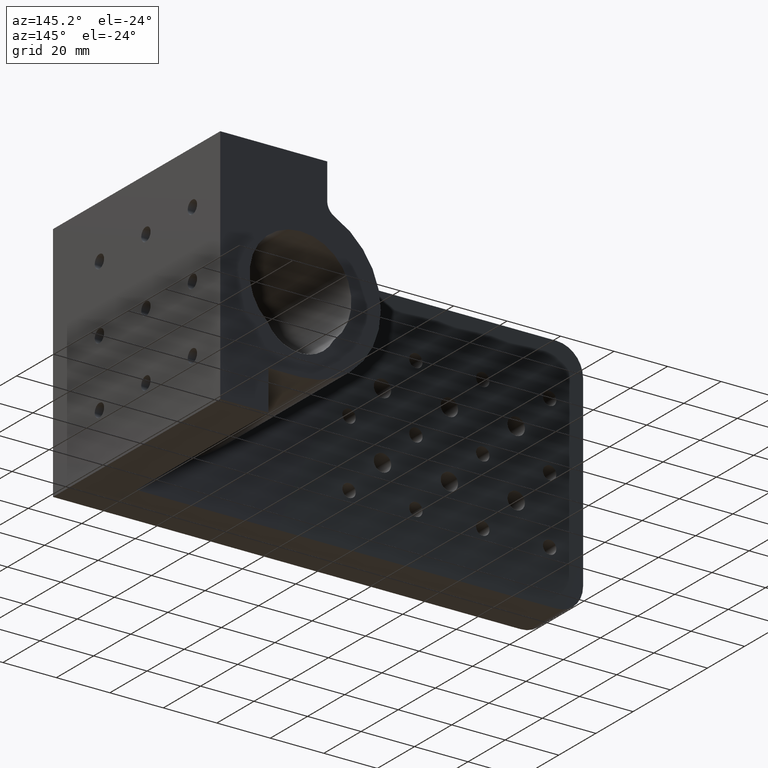
[diagram: clean part render]
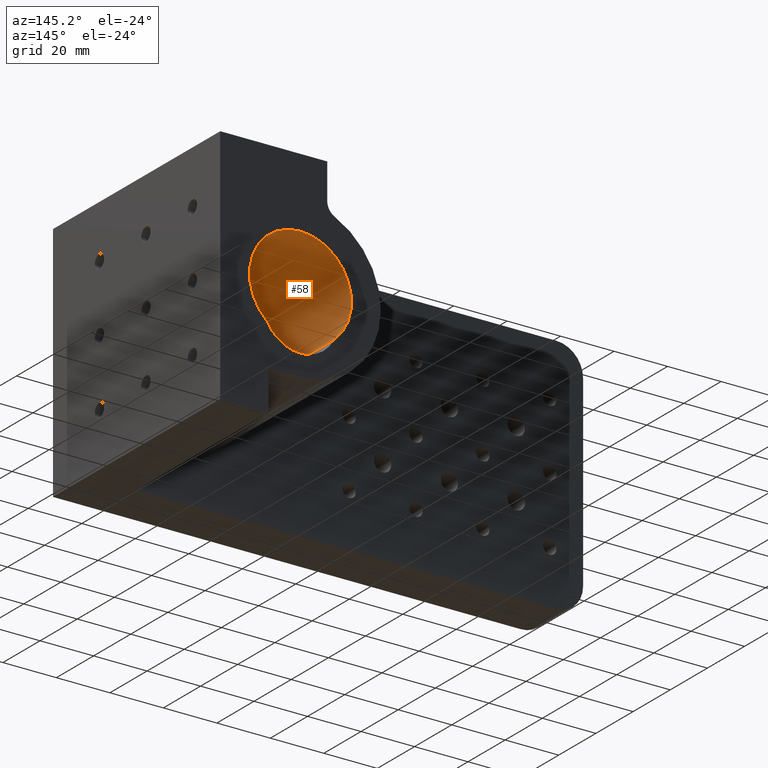
[diagram: same view with one face highlighted and labeled with its STEP entity id]
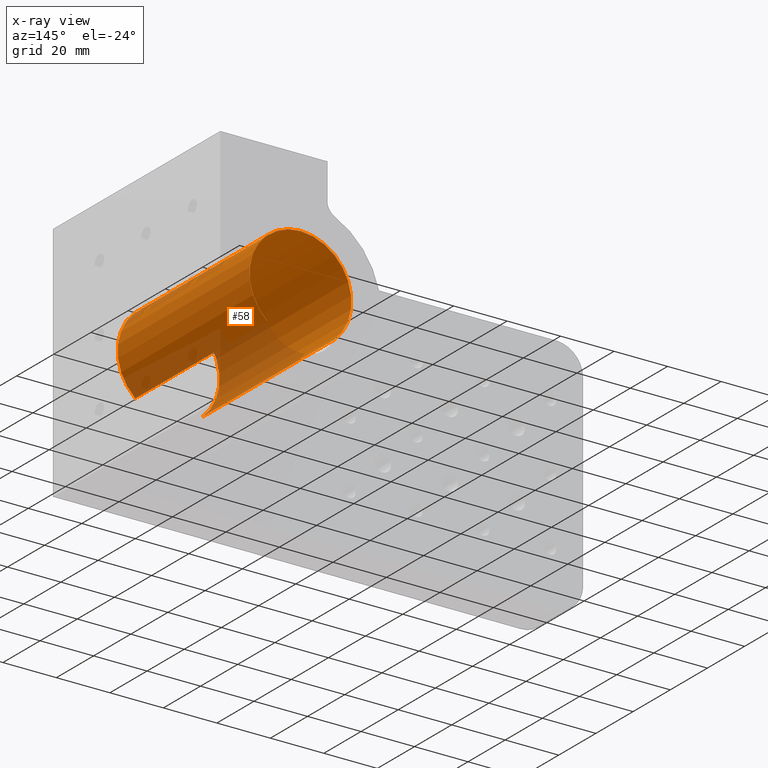
[diagram: x-ray of the same camera — body ghosted, the highlighted face saturated]
A machine part, auxiliary view. The second image highlights one B-rep face of the part: STEP entity #58.
The next image is the same camera in x-ray: the body ghosted, the highlighted face saturated — about 27% of this face is hidden behind the body in this view.
In plain terms, the highlighted cylindrical surface (partial cylindrical patch) has radius 19.05 mm, axis along (-0, -1, -0).
Its self-contained STEP definition (entity closure, byte-faithful):
#58 = ADVANCED_FACE ( 'NONE', ( #131, #5009 ), #5196, .F. ) ;
#65 = CARTESIAN_POINT ( 'NONE',  ( 156.8322518949002000, 104.2146020396520600, 129.3844876752718600 ) ) ;
#131 = FACE_BOUND ( 'NONE', #2274, .T. ) ;
#173 = ORIENTED_EDGE ( 'NONE', *, *, #1598, .T. ) ;
#221 = EDGE_CURVE ( 'NONE', #2389, #1875, #5304, .T. ) ;
#306 = CARTESIAN_POINT ( 'NONE',  ( 144.3969387244481500, 175.2146020396520500, 143.8158939252802800 ) ) ;
#332 = CARTESIAN_POINT ( 'NONE',  ( 144.3969387244481500, 175.2146020396520500, 143.8158939252802800 ) ) ;
#345 = CARTESIAN_POINT ( 'NONE',  ( 140.5534940069089200, 131.8457320932120900, 162.4756939529519900 ) ) ;
#360 = CARTESIAN_POINT ( 'NONE',  ( 144.7320745296052800, 140.3146764051232900, 162.8659138341461100 ) ) ;
#378 = CARTESIAN_POINT ( 'NONE',  ( 139.2969387244481800, 135.5482889441150600, 162.1705254933614000 ) ) ;
#391 = CARTESIAN_POINT ( 'NONE',  ( 148.2356930480436600, 138.5885285605427000, 162.4766348265846700 ) ) ;
#394 = CARTESIAN_POINT ( 'NONE',  ( 147.5124767684190500, 131.1629616537636300, 162.6115125459931200 ) ) ;
#504 = CARTESIAN_POINT ( 'NONE',  ( 156.8322518949002000, 175.2146020396520500, 129.3844876752718600 ) ) ;
#517 = CARTESIAN_POINT ( 'NONE',  ( 131.9616255539765500, 104.2146020396520600, 129.3844876752886800 ) ) ;
#678 = EDGE_CURVE ( 'NONE', #2223, #2565, #953, .T. ) ;
#742 = CARTESIAN_POINT ( 'NONE',  ( 149.4969387244482000, 134.8759589777436400, 162.1705254933614200 ) ) ;
#764 = CARTESIAN_POINT ( 'NONE',  ( 143.7249337885868100, 130.1480363029228900, 162.8568653750938300 ) ) ;
#777 = CARTESIAN_POINT ( 'NONE',  ( 147.5098175212722300, 139.2682501928640000, 162.6119492285722300 ) ) ;
#782 = CARTESIAN_POINT ( 'NONE',  ( 144.7334623074209800, 130.1147421188570400, 162.8658564237639400 ) ) ;
#820 = CARTESIAN_POINT ( 'NONE',  ( 142.7507941735931600, 130.3759341129924100, 162.7971921713010500 ) ) ;
#829 = CARTESIAN_POINT ( 'NONE',  ( 139.8142782350315400, 137.4773074850221500, 162.3069470261760600 ) ) ;
#906 = DIRECTION ( 'NONE',  ( 0.0000000000000000000, 1.000000000000000000, 0.0000000000000000000 ) ) ;
#945 = CARTESIAN_POINT ( 'NONE',  ( 144.3969387244481500, 104.2146020396520600, 143.8158939252802800 ) ) ;
#953 = LINE ( 'NONE', #4755, #5233 ) ;
#1163 = CARTESIAN_POINT ( 'NONE',  ( 146.0444371625371800, 130.3851348704734800, 162.7951991871729300 ) ) ;
#1174 = ORIENTED_EDGE ( 'NONE', *, *, #2784, .T. ) ;
#1178 = CARTESIAN_POINT ( 'NONE',  ( 146.6609617867881600, 130.6326331705610100, 162.7333911817502200 ) ) ;
#1190 = CARTESIAN_POINT ( 'NONE',  ( 139.2969387244481500, 135.2146020396520800, 162.1705254933614000 ) ) ;
#1228 = CARTESIAN_POINT ( 'NONE',  ( 145.0641024167868800, 140.2818153931530700, 162.8570386131046100 ) ) ;
#1336 = ORIENTED_EDGE ( 'NONE', *, *, #2569, .F. ) ;
#1512 = CIRCLE ( 'NONE', #3780, 19.05000000000001100 ) ;
#1556 = DIRECTION ( 'NONE',  ( 0.0000000000000000000, 0.0000000000000000000, 1.000000000000000000 ) ) ;
#1579 = CARTESIAN_POINT ( 'NONE',  ( 145.0654611669130500, 130.1474505689380100, 162.8570203914796700 ) ) ;
#1582 = VERTEX_POINT ( 'NONE', #65 ) ;
#1596 = CARTESIAN_POINT ( 'NONE',  ( 139.3294715469843400, 135.8815957690566200, 162.1796618298240300 ) ) ;
#1598 = EDGE_CURVE ( 'NONE', #2642, #1582, #2453, .T. ) ;
#1602 = CARTESIAN_POINT ( 'NONE',  ( 139.9745827405436700, 132.6528109795745800, 162.3464387125089800 ) ) ;
#1619 = CARTESIAN_POINT ( 'NONE',  ( 149.3330198447654000, 133.8893576014448600, 162.2154096213646700 ) ) ;
#1631 = CARTESIAN_POINT ( 'NONE',  ( 141.8351782834190000, 139.6369392454651000, 162.6949125559027900 ) ) ;
#1633 = CARTESIAN_POINT ( 'NONE',  ( 139.8144160578500000, 132.9515437315565700, 162.3069825420576800 ) ) ;
#1644 = CARTESIAN_POINT ( 'NONE',  ( 140.3441544502366000, 138.3283713162923300, 162.4307659959254100 ) ) ;
#1667 = CARTESIAN_POINT ( 'NONE',  ( 146.0453924596806700, 140.0523107751770300, 162.7969537645085200 ) ) ;
#1675 = AXIS2_PLACEMENT_3D ( 'NONE', #306, #4431, #1556 ) ;
#1875 = VERTEX_POINT ( 'NONE', #5200 ) ;
#1938 = EDGE_CURVE ( 'NONE', #1875, #2389, #4096, .T. ) ;
#1982 = CARTESIAN_POINT ( 'NONE',  ( 141.8352386204892400, 130.7922128592349200, 162.6949234834818600 ) ) ;
#2004 = CARTESIAN_POINT ( 'NONE',  ( 143.0695321403437700, 130.2790503218704700, 162.8224237544446000 ) ) ;
#2022 = CARTESIAN_POINT ( 'NONE',  ( 139.3051100645902200, 134.8805923814755700, 162.1728020282841400 ) ) ;
#2067 = CARTESIAN_POINT ( 'NONE',  ( 149.3321772510421400, 136.5433505991102500, 162.2156372679507400 ) ) ;
#2223 = VERTEX_POINT ( 'NONE', #4700 ) ;
#2274 = EDGE_LOOP ( 'NONE', ( #2813, #4960 ) ) ;
#2389 = VERTEX_POINT ( 'NONE', #3686 ) ;
#2397 = CARTESIAN_POINT ( 'NONE',  ( 139.9740738621586000, 137.7756342322200300, 162.3463226572256100 ) ) ;
#2404 = CARTESIAN_POINT ( 'NONE',  ( 148.9776559678246900, 132.9477520386494700, 162.3074339855491200 ) ) ;
#2416 = CARTESIAN_POINT ( 'NONE',  ( 139.4617080185513500, 136.5441140212872100, 162.2156410193627500 ) ) ;
#2441 = CARTESIAN_POINT ( 'NONE',  ( 148.4490260531241300, 138.3294035973164600, 162.4309245915997100 ) ) ;
#2444 = CARTESIAN_POINT ( 'NONE',  ( 146.9553531879317900, 130.7900249352239300, 162.6954164847030600 ) ) ;
#2453 = LINE ( 'NONE', #504, #4986 ) ;
#2456 = CARTESIAN_POINT ( 'NONE',  ( 144.0578928810630300, 140.3060865160075800, 162.8636091834151800 ) ) ;
#2461 = CARTESIAN_POINT ( 'NONE',  ( 146.2010709016348100, 130.4414828421804800, 162.7808974266266100 ) ) ;
#2565 = VERTEX_POINT ( 'NONE', #517 ) ;
#2569 = EDGE_CURVE ( 'NONE', #2565, #1582, #1512, .T. ) ;
#2591 = CIRCLE ( 'NONE', #1675, 19.05000000000001100 ) ;
#2642 = VERTEX_POINT ( 'NONE', #3550 ) ;
#2784 = EDGE_CURVE ( 'NONE', #2223, #2642, #2591, .T. ) ;
#2813 = ORIENTED_EDGE ( 'NONE', *, *, #1938, .F. ) ;
#2826 = CARTESIAN_POINT ( 'NONE',  ( 145.5598252226593600, 130.2461081468222200, 162.8310832441313500 ) ) ;
#2841 = CARTESIAN_POINT ( 'NONE',  ( 145.7198594083885400, 140.1513661039229200, 162.8227395151997100 ) ) ;
#2857 = CARTESIAN_POINT ( 'NONE',  ( 139.5592255086459700, 136.8629781907233700, 162.2418634461239400 ) ) ;
#2862 = CARTESIAN_POINT ( 'NONE',  ( 139.2969387244482100, 135.0477127659412100, 162.1705254933614200 ) ) ;
#2872 = CARTESIAN_POINT ( 'NONE',  ( 141.2847490420790800, 139.2684839200348100, 162.6120168338369800 ) ) ;
#2880 = CARTESIAN_POINT ( 'NONE',  ( 142.1312694670798200, 130.6332002887672000, 162.7332462189527900 ) ) ;
#3240 = DIRECTION ( 'NONE',  ( 0.0000000000000000000, 0.0000000000000000000, -1.000000000000000000 ) ) ;
#3269 = CARTESIAN_POINT ( 'NONE',  ( 149.2341981470490300, 133.5646018368424000, 162.2419880730576300 ) ) ;
#3284 = CARTESIAN_POINT ( 'NONE',  ( 149.4969387244482300, 135.5531521229902100, 162.1705254933614800 ) ) ;
#3293 = CARTESIAN_POINT ( 'NONE',  ( 148.8208992921052800, 132.6554368492760100, 162.3460611863019900 ) ) ;
#3305 = CARTESIAN_POINT ( 'NONE',  ( 148.9769919705669600, 137.4825783404635900, 162.3075955251852900 ) ) ;
#3308 = CARTESIAN_POINT ( 'NONE',  ( 139.3381749141606500, 134.5458791786467400, 162.1819414836202500 ) ) ;
#3331 = EDGE_LOOP ( 'NONE', ( #1336, #5133, #1174, #173 ) ) ;
#3426 = DIRECTION ( 'NONE',  ( -0.0000000000000000000, -1.000000000000000000, -0.0000000000000000000 ) ) ;
#3550 = CARTESIAN_POINT ( 'NONE',  ( 156.8322518949002000, 175.2146020396520500, 129.3844876752718600 ) ) ;
#3663 = CARTESIAN_POINT ( 'NONE',  ( 139.4619577172152600, 133.8848128519726400, 162.2157067725692900 ) ) ;
#3679 = CARTESIAN_POINT ( 'NONE',  ( 146.6602917289082200, 139.7969659169733600, 162.7334853553425700 ) ) ;
#3686 = CARTESIAN_POINT ( 'NONE',  ( 139.2969387244481500, 135.2146020396520800, 162.1705254933614000 ) ) ;
#3703 = CARTESIAN_POINT ( 'NONE',  ( 140.5541047370533400, 138.5840580792713000, 162.4758092353744700 ) ) ;
#3721 = CARTESIAN_POINT ( 'NONE',  ( 147.7677082724394800, 139.0561287647480500, 162.5668191930336100 ) ) ;
#3780 = AXIS2_PLACEMENT_3D ( 'NONE', #945, #906, #4636 ) ;
#4041 = DIRECTION ( 'NONE',  ( -0.0000000000000000000, -1.000000000000000000, -0.0000000000000000000 ) ) ;
#4053 = CARTESIAN_POINT ( 'NONE',  ( 149.4969387244481400, 135.2146020396520800, 162.1705254933614000 ) ) ;
#4067 = CARTESIAN_POINT ( 'NONE',  ( 143.5587834198013600, 140.2480125478816400, 162.8481488156601500 ) ) ;
#4074 = CARTESIAN_POINT ( 'NONE',  ( 140.3436344135088800, 132.1016082961969000, 162.4306473945794700 ) ) ;
#4085 = CARTESIAN_POINT ( 'NONE',  ( 149.4969387244481400, 135.2146020396520800, 162.1705254933614000 ) ) ;
#4089 = CARTESIAN_POINT ( 'NONE',  ( 149.4635474237224700, 134.5433003669374400, 162.1798954218290300 ) ) ;
#4096 = B_SPLINE_CURVE_WITH_KNOTS ( 'NONE', 3,
 ( #4053, #742, #4089, #1619, #3269, #2404, #3293, #4939, #5315, #5372, #394, #2444, #1178, #2461, #1163, #4107, #2826, #1579, #782, #4453, #764, #2004, #820, #2880, #1982, #4473, #4877, #345, #4074, #1602, #1633, #4953, #3663, #4532, #3308, #2022, #2862, #4514 ),
 .UNSPECIFIED., .F., .F.,
 ( 4, 2, 2, 2, 2, 2, 2, 2, 2, 2, 2, 2, 2, 2, 2, 2, 2, 2, 4 ),
 ( 0.0000000000000000000, 0.001001132243233266100, 0.002002264486466532100, 0.003003396729699798200, 0.004004528972933064200, 0.005005661216166330300, 0.006006793459399596300, 0.006507359581016210700, 0.007007925702632825100, 0.008009057945865968900, 0.009010190189099114400, 0.01001132243233225800, 0.01101245467556540000, 0.01201358691879854200, 0.01301471916203168600, 0.01401585140526483000, 0.01501698364849797300, 0.01551754977011454900, 0.01601811589173112200 ),
 .UNSPECIFIED. ) ;
#4100 = CARTESIAN_POINT ( 'NONE',  ( 144.2276761698790900, 140.3145646692141500, 162.8658839205963600 ) ) ;
#4107 = CARTESIAN_POINT ( 'NONE',  ( 145.7242986725412400, 130.2875217876287500, 162.8202722338651300 ) ) ;
#4135 = CARTESIAN_POINT ( 'NONE',  ( 149.2327427239078200, 136.8685681569399400, 162.2423671493137900 ) ) ;
#4333 = DIRECTION ( 'NONE',  ( -0.0000000000000000000, -1.000000000000000000, -0.0000000000000000000 ) ) ;
#4431 = DIRECTION ( 'NONE',  ( 0.0000000000000000000, 1.000000000000000000, 0.0000000000000000000 ) ) ;
#4453 = CARTESIAN_POINT ( 'NONE',  ( 144.0646744064198100, 130.1144628497284800, 162.8659311887213300 ) ) ;
#4473 = CARTESIAN_POINT ( 'NONE',  ( 141.2844424229284400, 131.1609369993806000, 162.6119688148708600 ) ) ;
#4509 = CARTESIAN_POINT ( 'NONE',  ( 148.8204187361714600, 137.7747241165713200, 162.3461827253264000 ) ) ;
#4514 = CARTESIAN_POINT ( 'NONE',  ( 139.2969387244481500, 135.2146020396520800, 162.1705254933614000 ) ) ;
#4526 = CARTESIAN_POINT ( 'NONE',  ( 142.1275606608430700, 139.7942399851832800, 162.7328154973693900 ) ) ;
#4532 = CARTESIAN_POINT ( 'NONE',  ( 139.3632547753526300, 134.3778702385515100, 162.1888547234170800 ) ) ;
#4636 = DIRECTION ( 'NONE',  ( 0.0000000000000000000, 0.0000000000000000000, 1.000000000000000000 ) ) ;
#4700 = CARTESIAN_POINT ( 'NONE',  ( 131.9616255539765500, 175.2146020396520500, 129.3844876752886800 ) ) ;
#4755 = CARTESIAN_POINT ( 'NONE',  ( 131.9616255539765500, 175.2146020396520500, 129.3844876752886800 ) ) ;
#4877 = CARTESIAN_POINT ( 'NONE',  ( 141.0252352348053400, 131.3736428377421200, 162.5666757742434400 ) ) ;
#4919 = CARTESIAN_POINT ( 'NONE',  ( 141.0242402428105200, 139.0545905825468100, 162.5664863795608100 ) ) ;
#4939 = CARTESIAN_POINT ( 'NONE',  ( 148.4508069872347000, 132.1022226148727200, 162.4305300467197800 ) ) ;
#4949 = CARTESIAN_POINT ( 'NONE',  ( 143.7238932094138000, 140.2727811578307100, 162.8547336581420100 ) ) ;
#4953 = CARTESIAN_POINT ( 'NONE',  ( 139.5589935833401400, 133.5668054176883900, 162.2418039173277000 ) ) ;
#4960 = ORIENTED_EDGE ( 'NONE', *, *, #221, .F. ) ;
#4967 = CARTESIAN_POINT ( 'NONE',  ( 149.4635547748752100, 135.8865796034107800, 162.1798950194884700 ) ) ;
#4986 = VECTOR ( 'NONE', #3426, 1000.000000000000000 ) ;
#5009 = FACE_OUTER_BOUND ( 'NONE', #3331, .T. ) ;
#5133 = ORIENTED_EDGE ( 'NONE', *, *, #678, .F. ) ;
#5196 = CYLINDRICAL_SURFACE ( 'NONE', #5203, 19.04999999999999700 ) ;
#5200 = CARTESIAN_POINT ( 'NONE',  ( 149.4969387244481400, 135.2146020396520800, 162.1705254933614000 ) ) ;
#5203 = AXIS2_PLACEMENT_3D ( 'NONE', #332, #4041, #3240 ) ;
#5233 = VECTOR ( 'NONE', #4333, 1000.000000000000000 ) ;
#5304 = B_SPLINE_CURVE_WITH_KNOTS ( 'NONE', 3,
 ( #1190, #378, #1596, #2416, #2857, #829, #2397, #1644, #3703, #4919, #2872, #1631, #4526, #5309, #5326, #4067, #4949, #2456, #4100, #360, #1228, #2841, #1667, #3679, #5366, #777, #3721, #391, #2441, #4509, #3305, #4135, #2067, #4967, #3284, #4085 ),
 .UNSPECIFIED., .F., .F.,
 ( 4, 2, 2, 2, 2, 2, 2, 2, 2, 2, 2, 2, 2, 2, 2, 2, 2, 4 ),
 ( 0.01601811589173112200, 0.01701897326193362000, 0.01801983063213612200, 0.01902068800233862000, 0.02002154537254112100, 0.02102240274274361900, 0.02202326011294612100, 0.02302411748314861900, 0.02352454616824987600, 0.02402497485335113400, 0.02502583222355356900, 0.02602668959375600100, 0.02702754696395843300, 0.02802840433416086500, 0.02902926170436330100, 0.03003011907456573600, 0.03103097644476816900, 0.03203183381497060100 ),
 .UNSPECIFIED. ) ;
#5309 = CARTESIAN_POINT ( 'NONE',  ( 142.7487457930654100, 140.0526409572984500, 162.7970282070107500 ) ) ;
#5315 = CARTESIAN_POINT ( 'NONE',  ( 148.2365109924132000, 131.8415825076816900, 162.4764682243804000 ) ) ;
#5326 = CARTESIAN_POINT ( 'NONE',  ( 143.0689774008844500, 140.1499258749614700, 162.8223649504733700 ) ) ;
#5366 = CARTESIAN_POINT ( 'NONE',  ( 146.9532004358060800, 139.6403905362705900, 162.6957041846862900 ) ) ;
#5372 = CARTESIAN_POINT ( 'NONE',  ( 147.7682715427310400, 131.3735486695010500, 162.5667195978082000 ) ) ;